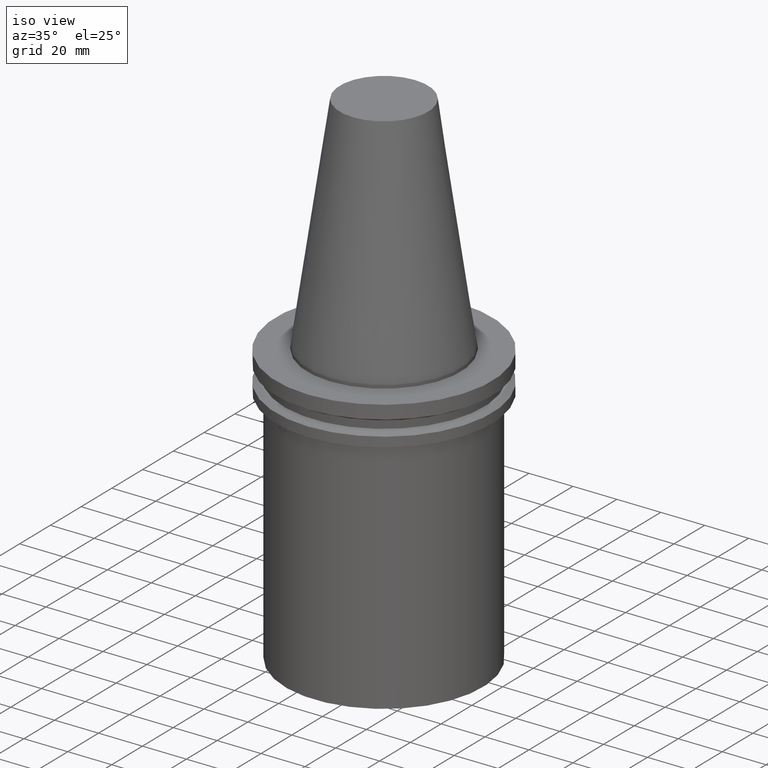
[diagram: clean part render]
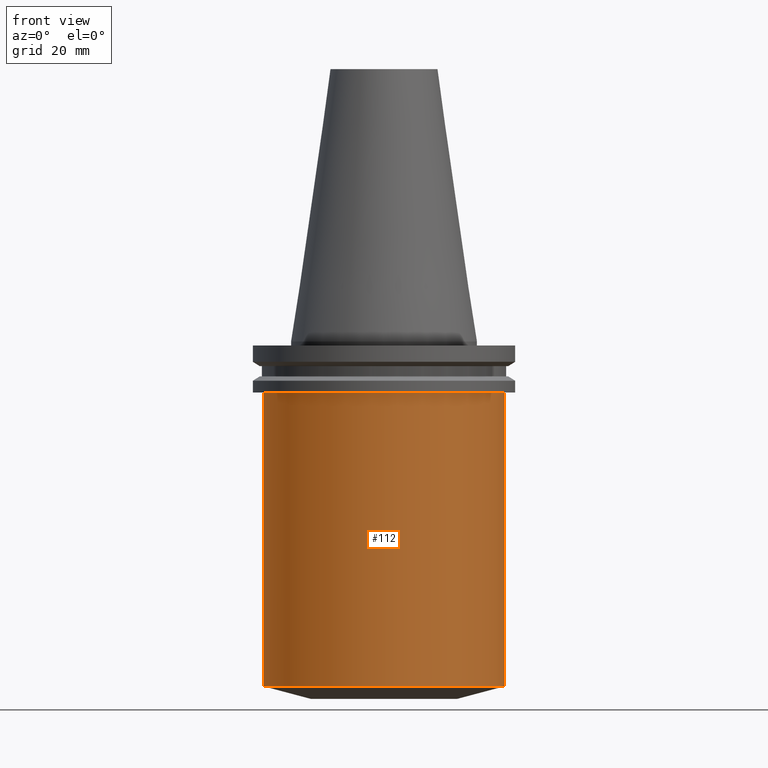
[diagram: tour spotlight — one face highlighted and labeled with its STEP entity id]
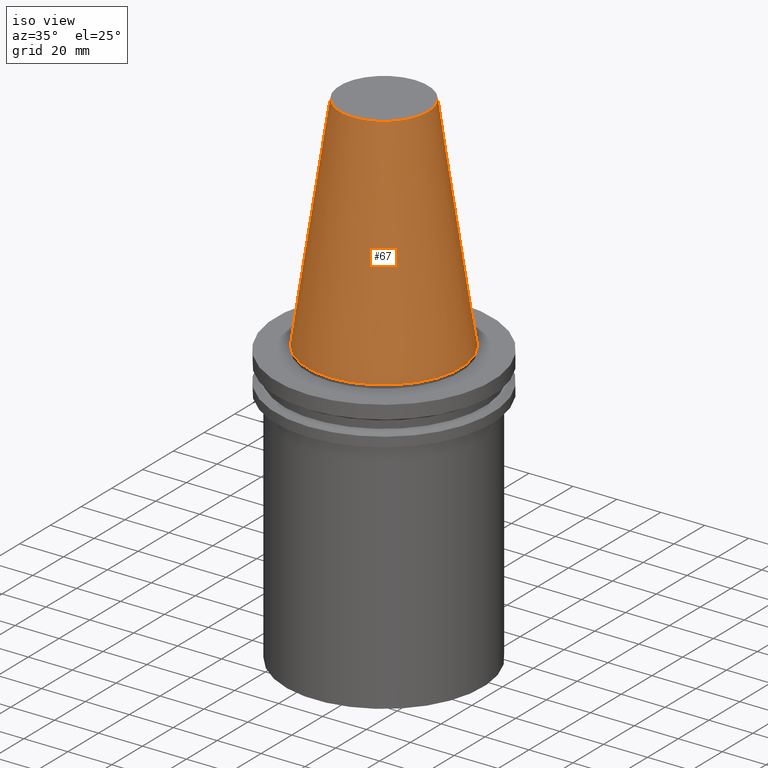
[diagram: tour spotlight — one face highlighted and labeled with its STEP entity id]
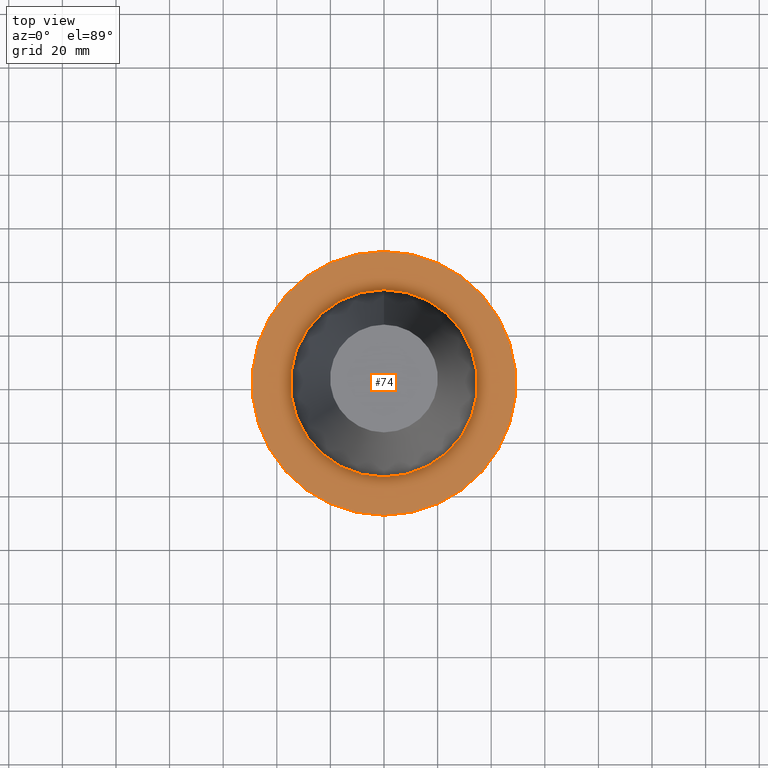
[diagram: tour spotlight — one face highlighted and labeled with its STEP entity id]
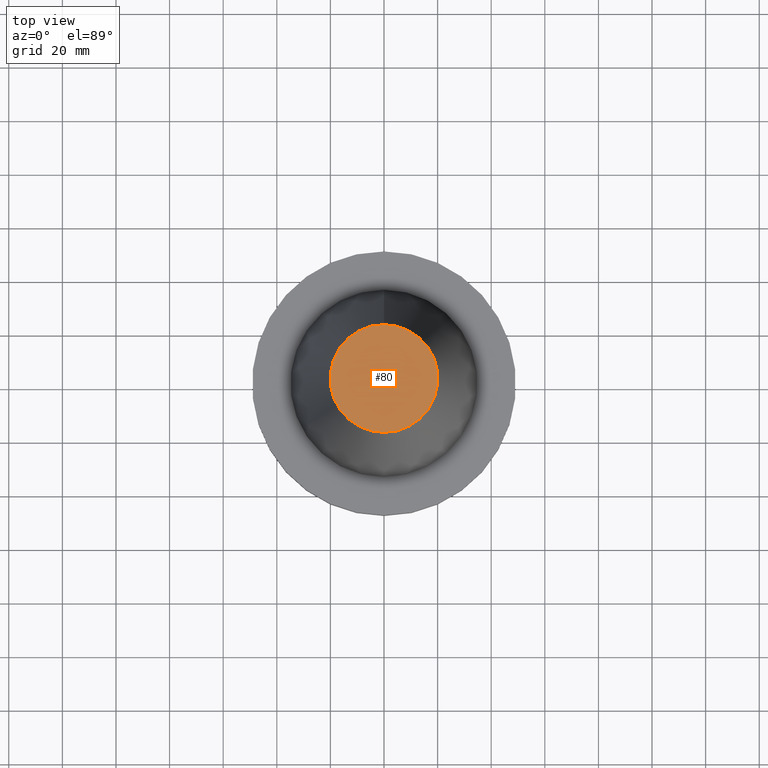
[diagram: tour spotlight — one face highlighted and labeled with its STEP entity id]
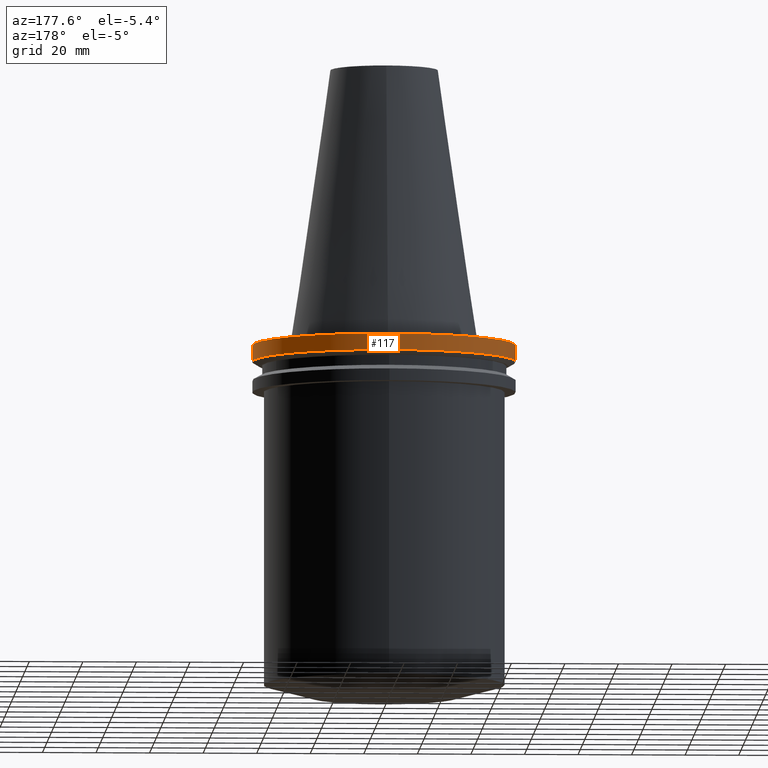
[diagram: tour spotlight — one face highlighted and labeled with its STEP entity id]
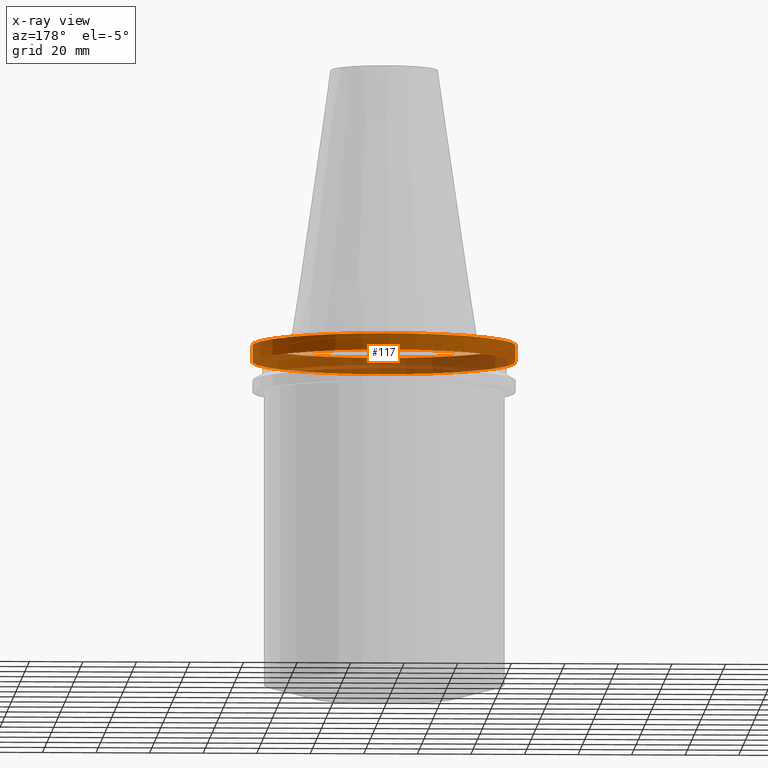
[diagram: x-ray of the same camera — body ghosted, this tour face saturated]
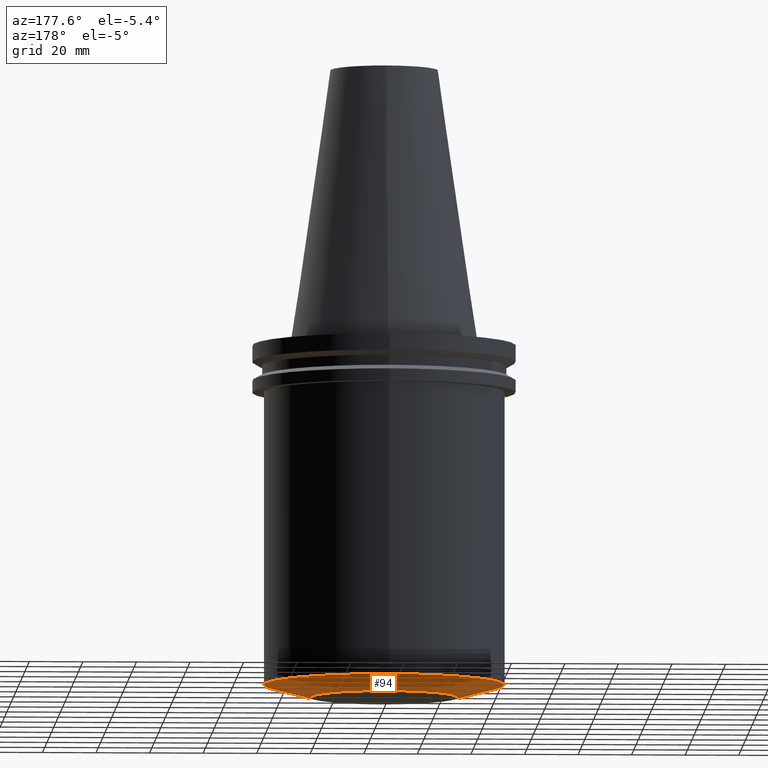
[diagram: tour spotlight — one face highlighted and labeled with its STEP entity id]
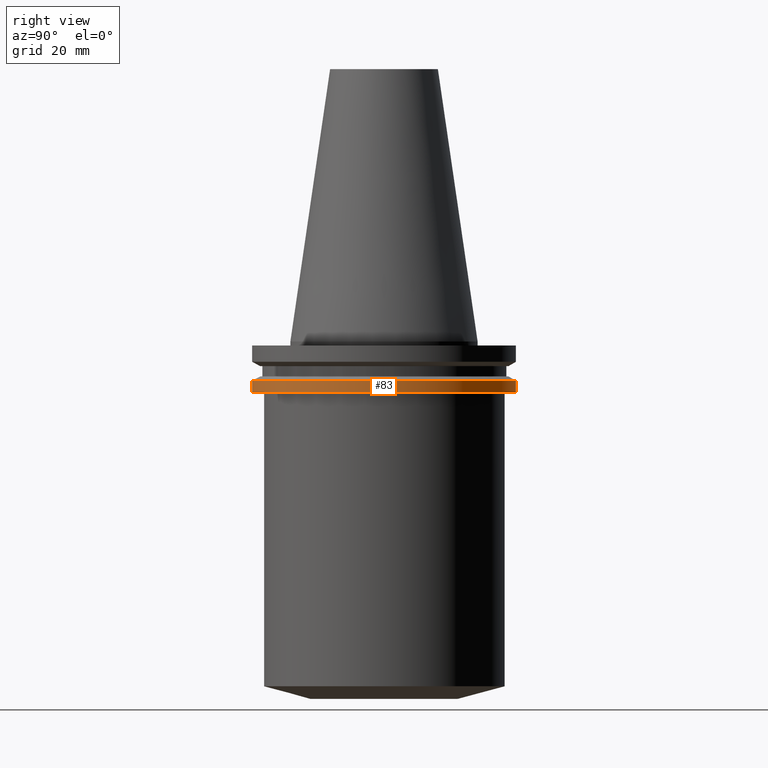
[diagram: tour spotlight — one face highlighted and labeled with its STEP entity id]
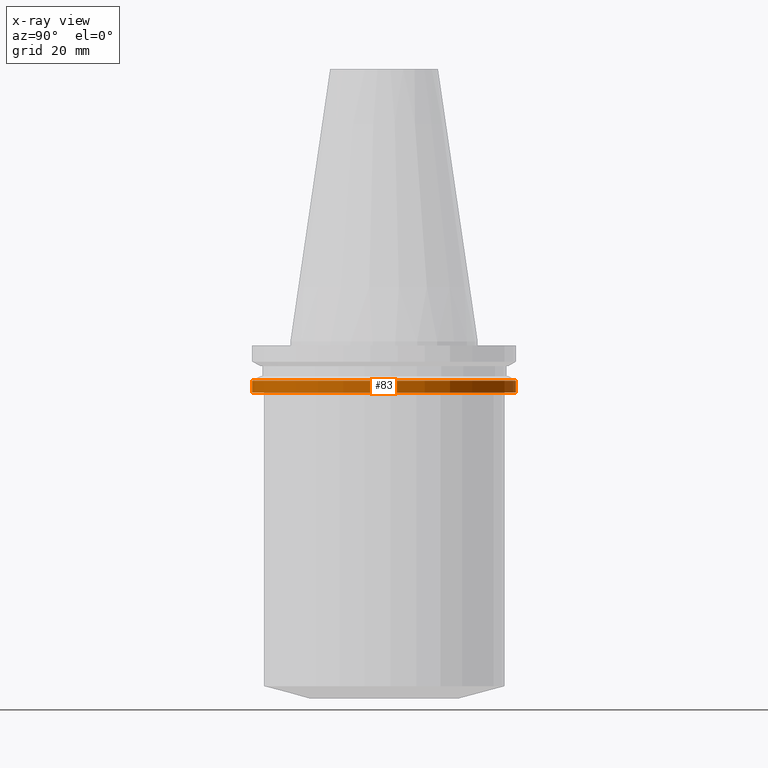
[diagram: x-ray of the same camera — body ghosted, this tour face saturated]
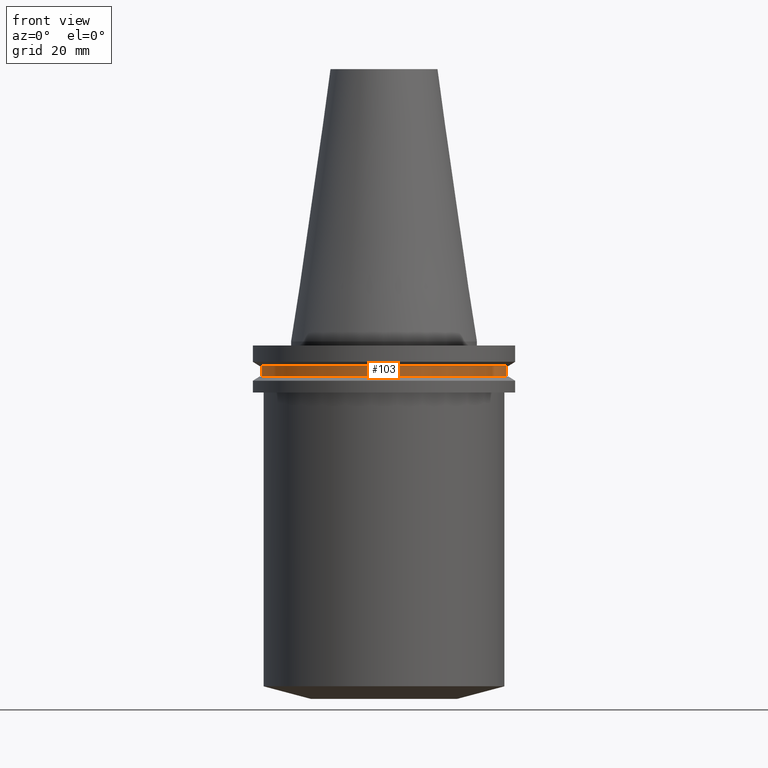
[diagram: tour spotlight — one face highlighted and labeled with its STEP entity id]
A machine part: a face-by-face anatomy tour. The part has 15 B-rep faces; the first image is the clean iso view, then the 8 largest visible faces are spotlighted one at a time (largest first), each with its STEP entity span.

Face 1 — front view, entity #112. In plain terms, the highlighted cylindrical surface (bore or boss wall) has radius 45 mm, axis along (0, 0, -1).
Definition (entity closure, byte-faithful):
#71=EDGE_CURVE('Unnamed[1]',#173,#173,#174,.T.);
#98=EDGE_CURVE('Unnamed[1]',#213,#213,#214,.T.);
#112=ADVANCED_FACE('Unnamed[1]',(#234,#235),#236,.T.);
#173=VERTEX_POINT('',#305);
#174=CIRCLE('',#306,44.9999999999901);
#213=VERTEX_POINT('',#354);
#214=CIRCLE('',#355,44.9999999999985);
#234=FACE_BOUND('',#381,.T.);
#235=FACE_BOUND('',#382,.T.);
#236=CYLINDRICAL_SURFACE('',#383,44.9999999999943);
#305=CARTESIAN_POINT('',(7.87820730257622E-015,44.9999999999901,-128.660889132464));
#306=AXIS2_PLACEMENT_3D('',#447,#448,#449);
#354=CARTESIAN_POINT('',(1.16647607618786E-015,44.9999999999985,-19.05));
#355=AXIS2_PLACEMENT_3D('',#491,#492,#493);
#381=EDGE_LOOP('',(#513));
#382=EDGE_LOOP('',(#514));
#383=AXIS2_PLACEMENT_3D('',#515,#516,#517);
#447=CARTESIAN_POINT('',(7.87820730257622E-015,1.57564146051524E-014,-128.660889132464));
#448=DIRECTION('',(6.12323399573676E-017,1.22464679914735E-016,-1.0));
#449=DIRECTION('',(-1.23259516440783E-032,1.0,1.22464679914735E-016));
#491=CARTESIAN_POINT('',(1.16647607618786E-015,2.33295215237571E-015,-19.05));
#492=DIRECTION('',(6.12323399573677E-017,1.22464679914735E-016,-1.0));
#493=DIRECTION('',(-1.23259516440783E-032,1.0,1.22464679914735E-016));
#513=ORIENTED_EDGE('',*,*,#71,.F.);
#514=ORIENTED_EDGE('',*,*,#98,.T.);
#515=CARTESIAN_POINT('',(4.52234168938204E-015,9.04468337876407E-015,-73.855444566232));
#516=DIRECTION('',(6.12323399573677E-017,1.22464679914735E-016,-1.0));
#517=DIRECTION('',(-1.23259516440783E-032,1.0,1.22464679914735E-016));

Face 2 — iso view, entity #67. In plain terms, the highlighted conical surface has half-angle 8.297 deg.
Definition (entity closure, byte-faithful):
#62=EDGE_CURVE('Unnamed[1]',#159,#159,#160,.T.);
#67=ADVANCED_FACE('Unnamed[1]',(#166,#167),#168,.T.);
#69=EDGE_CURVE('Unnamed[1]',#170,#170,#171,.T.);
#159=VERTEX_POINT('',#287);
#160=CIRCLE('',#288,20.1083333297217);
#166=FACE_BOUND('',#296,.T.);
#167=FACE_BOUND('',#297,.T.);
#168=CONICAL_SURFACE('',#298,27.5166666648609,0.144812498273746);
#170=VERTEX_POINT('',#301);
#171=CIRCLE('',#302,34.925);
#287=CARTESIAN_POINT('',(-6.22120573966855E-015,20.1083333297217,101.6));
#288=AXIS2_PLACEMENT_3D('',#432,#433,#434);
#296=EDGE_LOOP('',(#439));
#297=EDGE_LOOP('',(#440));
#298=AXIS2_PLACEMENT_3D('',#441,#442,#443);
#301=CARTESIAN_POINT('',(-4.30483861169435E-031,34.925,4.27707894602213E-015));
#302=AXIS2_PLACEMENT_3D('',#444,#445,#446);
#432=CARTESIAN_POINT('',(-6.22120573966855E-015,-1.24424114793371E-014,101.6));
#433=DIRECTION('',(6.12323399573676E-017,1.22464679914735E-016,-1.0));
#434=DIRECTION('',(-1.23259516440783E-032,1.0,1.22464679914735E-016));
#439=ORIENTED_EDGE('',*,*,#69,.F.);
#440=ORIENTED_EDGE('',*,*,#62,.T.);
#441=CARTESIAN_POINT('',(-3.11060286983428E-015,-6.22120573966855E-015,50.8));
#442=DIRECTION('',(6.12323399573677E-017,1.22464679914735E-016,-1.0));
#443=DIRECTION('',(-1.23259516440783E-032,1.0,1.22464679914735E-016));
#444=CARTESIAN_POINT('',(0.0,0.0,0.0));
#445=DIRECTION('',(6.12323399573677E-017,1.22464679914735E-016,-1.0));
#446=DIRECTION('',(-1.23259516440783E-032,1.0,1.22464679914735E-016));

Face 3 — top view, entity #74. In plain terms, the highlighted planar face has unit normal (-0, -0, 1).
Definition (entity closure, byte-faithful):
#64=EDGE_CURVE('Unnamed[1]',#162,#162,#163,.T.);
#74=ADVANCED_FACE('Unnamed[1]',(#177,#178),#179,.T.);
#105=EDGE_CURVE('Unnamed[1]',#224,#224,#225,.T.);
#162=VERTEX_POINT('',#291);
#163=CIRCLE('',#292,49.2125);
#177=FACE_OUTER_BOUND('',#310,.T.);
#178=FACE_BOUND('',#311,.T.);
#179=PLANE('',#312);
#224=VERTEX_POINT('',#368);
#225=CIRCLE('',#369,34.925);
#291=CARTESIAN_POINT('',(9.18485099360509E-017,49.2125,-1.49999999999999));
#292=AXIS2_PLACEMENT_3D('',#435,#436,#437);
#310=EDGE_LOOP('',(#451));
#311=EDGE_LOOP('',(#452));
#312=AXIS2_PLACEMENT_3D('',#453,#454,#455);
#368=CARTESIAN_POINT('',(9.18485099360511E-017,34.925,-1.5));
#369=AXIS2_PLACEMENT_3D('',#503,#504,#505);
#435=CARTESIAN_POINT('',(9.18485099360515E-017,1.83697019872103E-016,-1.5));
#436=DIRECTION('',(6.12323399573677E-017,1.22464679914735E-016,-1.0));
#437=DIRECTION('',(-1.23259516440783E-032,1.0,1.22464679914735E-016));
#451=ORIENTED_EDGE('',*,*,#64,.F.);
#452=ORIENTED_EDGE('',*,*,#105,.T.);
#453=CARTESIAN_POINT('',(9.1848509936051E-017,42.06875,-1.49999999999999));
#454=DIRECTION('',(-6.12323399573677E-017,-1.22464679914735E-016,1.0));
#455=DIRECTION('',(1.23259516440783E-032,-1.0,-1.22464679914735E-016));
#503=CARTESIAN_POINT('',(9.18485099360515E-017,1.83697019872103E-016,-1.5));
#504=DIRECTION('',(6.12323399573677E-017,1.22464679914735E-016,-1.0));
#505=DIRECTION('',(-1.23259516440783E-032,1.0,1.22464679914735E-016));

Face 4 — top view, entity #80. In plain terms, the highlighted planar face has unit normal (-0, -0, 1).
Definition (entity closure, byte-faithful):
#62=EDGE_CURVE('Unnamed[1]',#159,#159,#160,.T.);
#80=ADVANCED_FACE('Unnamed[1]',(#185),#186,.T.);
#159=VERTEX_POINT('',#287);
#160=CIRCLE('',#288,20.1083333297217);
#185=FACE_OUTER_BOUND('',#319,.T.);
#186=PLANE('',#320);
#287=CARTESIAN_POINT('',(-6.22120573966855E-015,20.1083333297217,101.6));
#288=AXIS2_PLACEMENT_3D('',#432,#433,#434);
#319=EDGE_LOOP('',(#458));
#320=AXIS2_PLACEMENT_3D('',#459,#460,#461);
#432=CARTESIAN_POINT('',(-6.22120573966855E-015,-1.24424114793371E-014,101.6));
#433=DIRECTION('',(6.12323399573676E-017,1.22464679914735E-016,-1.0));
#434=DIRECTION('',(-1.23259516440783E-032,1.0,1.22464679914735E-016));
#458=ORIENTED_EDGE('',*,*,#62,.F.);
#459=CARTESIAN_POINT('',(-6.22120573966855E-015,10.0541666648608,101.6));
#460=DIRECTION('',(-6.12323399573677E-017,-1.22464679914735E-016,1.0));
#461=DIRECTION('',(1.23259516440783E-032,-1.0,-1.22464679914735E-016));

Face 5 — auxiliary view, entity #117. An x-ray twin of the same camera follows (body ghosted, this face saturated) — the face is partly hidden behind the body. In plain terms, the highlighted cylindrical surface (bore or boss wall) has radius 49.2125 mm, axis along (0, 0, -1).
Definition (entity closure, byte-faithful):
#64=EDGE_CURVE('Unnamed[1]',#162,#162,#163,.T.);
#114=EDGE_CURVE('Unnamed[1]',#238,#238,#239,.T.);
#117=ADVANCED_FACE('Unnamed[1]',(#242,#243),#244,.T.);
#162=VERTEX_POINT('',#291);
#163=CIRCLE('',#292,49.2125);
#238=VERTEX_POINT('',#386);
#239=CIRCLE('',#387,49.2125);
#242=FACE_BOUND('',#391,.T.);
#243=FACE_BOUND('',#392,.T.);
#244=CYLINDRICAL_SURFACE('',#393,49.2125);
#291=CARTESIAN_POINT('',(9.18485099360509E-017,49.2125,-1.49999999999999));
#292=AXIS2_PLACEMENT_3D('',#435,#436,#437);
#386=CARTESIAN_POINT('',(4.64988177918915E-016,49.2125,-7.59383323));
#387=AXIS2_PLACEMENT_3D('',#518,#519,#520);
#391=EDGE_LOOP('',(#522));
#392=EDGE_LOOP('',(#523));
#393=AXIS2_PLACEMENT_3D('',#524,#525,#526);
#435=CARTESIAN_POINT('',(9.18485099360515E-017,1.83697019872103E-016,-1.5));
#436=DIRECTION('',(6.12323399573677E-017,1.22464679914735E-016,-1.0));
#437=DIRECTION('',(-1.23259516440783E-032,1.0,1.22464679914735E-016));
#518=CARTESIAN_POINT('',(4.64988177918915E-016,9.29976355837831E-016,-7.59383323));
#519=DIRECTION('',(6.12323399573677E-017,1.22464679914735E-016,-1.0));
#520=DIRECTION('',(-1.23259516440783E-032,1.0,1.22464679914735E-016));
#522=ORIENTED_EDGE('',*,*,#114,.F.);
#523=ORIENTED_EDGE('',*,*,#64,.T.);
#524=CARTESIAN_POINT('',(2.78418343927483E-016,5.56836687854965E-016,-4.54691661499999));
#525=DIRECTION('',(6.12323399573677E-017,1.22464679914735E-016,-1.0));
#526=DIRECTION('',(-1.23259516440783E-032,1.0,1.22464679914735E-016));

Face 6 — auxiliary view, entity #94. In plain terms, the highlighted conical surface has half-angle 75 deg.
Definition (entity closure, byte-faithful):
#71=EDGE_CURVE('Unnamed[1]',#173,#173,#174,.T.);
#94=ADVANCED_FACE('Unnamed[1]',(#206,#207),#208,.T.);
#100=EDGE_CURVE('Unnamed[1]',#216,#216,#217,.T.);
#173=VERTEX_POINT('',#305);
#174=CIRCLE('',#306,44.9999999999901);
#206=FACE_BOUND('',#345,.T.);
#207=FACE_BOUND('',#346,.T.);
#208=CONICAL_SURFACE('',#347,36.2500000000041,1.30899693899581);
#216=VERTEX_POINT('',#358);
#217=CIRCLE('',#359,27.500000000018);
#305=CARTESIAN_POINT('',(7.87820730257622E-015,44.9999999999901,-128.660889132464));
#306=AXIS2_PLACEMENT_3D('',#447,#448,#449);
#345=EDGE_LOOP('',(#483));
#346=EDGE_LOOP('',(#484));
#347=AXIS2_PLACEMENT_3D('',#485,#486,#487);
#358=CARTESIAN_POINT('',(8.16533253331496E-015,27.500000000018,-133.35));
#359=AXIS2_PLACEMENT_3D('',#494,#495,#496);
#447=CARTESIAN_POINT('',(7.87820730257622E-015,1.57564146051524E-014,-128.660889132464));
#448=DIRECTION('',(6.12323399573676E-017,1.22464679914735E-016,-1.0));
#449=DIRECTION('',(-1.23259516440783E-032,1.0,1.22464679914735E-016));
#483=ORIENTED_EDGE('',*,*,#100,.F.);
#484=ORIENTED_EDGE('',*,*,#71,.T.);
#485=CARTESIAN_POINT('',(8.02176991794559E-015,1.60435398358912E-014,-131.005444566232));
#486=DIRECTION('',(-6.12323399573677E-017,-1.22464679914735E-016,1.0));
#487=DIRECTION('',(-1.23259516440783E-032,1.0,1.22464679914735E-016));
#494=CARTESIAN_POINT('',(8.16533253331496E-015,1.63306650666299E-014,-133.35));
#495=DIRECTION('',(6.12323399573677E-017,1.22464679914735E-016,-1.0));
#496=DIRECTION('',(-1.23259516440783E-032,1.0,1.22464679914735E-016));

Face 7 — right view, entity #83. An x-ray twin of the same camera follows (body ghosted, this face saturated) — the face is partly hidden behind the body. In plain terms, the highlighted cylindrical surface (bore or boss wall) has radius 49.2125 mm, axis along (0, 0, -1).
Definition (entity closure, byte-faithful):
#83=ADVANCED_FACE('Unnamed[1]',(#189,#190),#191,.T.);
#96=EDGE_CURVE('Unnamed[1]',#210,#210,#211,.T.);
#109=EDGE_CURVE('Unnamed[1]',#230,#230,#231,.T.);
#189=FACE_BOUND('',#324,.T.);
#190=FACE_BOUND('',#325,.T.);
#191=CYLINDRICAL_SURFACE('',#326,49.2125);
#210=VERTEX_POINT('',#350);
#211=CIRCLE('',#351,49.2125);
#230=VERTEX_POINT('',#376);
#231=CIRCLE('',#377,49.2125);
#324=EDGE_LOOP('',(#463));
#325=EDGE_LOOP('',(#464));
#326=AXIS2_PLACEMENT_3D('',#465,#466,#467);
#350=CARTESIAN_POINT('',(8.96819062732941E-016,49.2125,-14.64616677));
#351=AXIS2_PLACEMENT_3D('',#488,#489,#490);
#376=CARTESIAN_POINT('',(1.16647607618785E-015,49.2125,-19.05));
#377=AXIS2_PLACEMENT_3D('',#509,#510,#511);
#463=ORIENTED_EDGE('',*,*,#109,.F.);
#464=ORIENTED_EDGE('',*,*,#96,.T.);
#465=CARTESIAN_POINT('',(1.0316475694604E-015,2.0632951389208E-015,-16.848083385));
#466=DIRECTION('',(6.12323399573677E-017,1.22464679914735E-016,-1.0));
#467=DIRECTION('',(-1.23259516440783E-032,1.0,1.22464679914735E-016));
#488=CARTESIAN_POINT('',(8.96819062732942E-016,1.79363812546588E-015,-14.64616677));
#489=DIRECTION('',(6.12323399573677E-017,1.22464679914735E-016,-1.0));
#490=DIRECTION('',(-1.23259516440783E-032,1.0,1.22464679914735E-016));
#509=CARTESIAN_POINT('',(1.16647607618785E-015,2.33295215237571E-015,-19.05));
#510=DIRECTION('',(6.12323399573677E-017,1.22464679914735E-016,-1.0));
#511=DIRECTION('',(-1.23259516440783E-032,1.0,1.22464679914735E-016));

Face 8 — front view, entity #103. In plain terms, the highlighted cylindrical surface (bore or boss wall) has radius 45.645 mm, axis along (0, 0, -1).
Definition (entity closure, byte-faithful):
#60=EDGE_CURVE('Unnamed[1]',#156,#156,#157,.T.);
#103=ADVANCED_FACE('Unnamed[1]',(#220,#221),#222,.T.);
#122=EDGE_CURVE('Unnamed[1]',#251,#251,#252,.T.);
#156=VERTEX_POINT('',#283);
#157=CIRCLE('',#284,45.645);
#220=FACE_BOUND('',#363,.T.);
#221=FACE_BOUND('',#364,.T.);
#222=CYLINDRICAL_SURFACE('',#365,45.645);
#251=VERTEX_POINT('',#402);
#252=CIRCLE('',#403,45.645);
#283=CARTESIAN_POINT('',(5.63337527607782E-016,45.645,-9.2));
#284=AXIS2_PLACEMENT_3D('',#429,#430,#431);
#363=EDGE_LOOP('',(#498));
#364=EDGE_LOOP('',(#499));
#365=AXIS2_PLACEMENT_3D('',#500,#501,#502);
#402=CARTESIAN_POINT('',(7.98469713044073E-016,45.645,-13.04));
#403=AXIS2_PLACEMENT_3D('',#533,#534,#535);
#429=CARTESIAN_POINT('',(5.63337527607783E-016,1.12667505521557E-015,-9.2));
#430=DIRECTION('',(6.12323399573677E-017,1.22464679914735E-016,-1.0));
#431=DIRECTION('',(-1.23259516440783E-032,1.0,1.22464679914735E-016));
#498=ORIENTED_EDGE('',*,*,#122,.F.);
#499=ORIENTED_EDGE('',*,*,#60,.T.);
#500=CARTESIAN_POINT('',(6.80903620325929E-016,1.36180724065186E-015,-11.12));
#501=DIRECTION('',(6.12323399573677E-017,1.22464679914735E-016,-1.0));
#502=DIRECTION('',(-1.23259516440783E-032,1.0,1.22464679914735E-016));
#533=CARTESIAN_POINT('',(7.98469713044074E-016,1.59693942608815E-015,-13.04));
#534=DIRECTION('',(6.12323399573677E-017,1.22464679914735E-016,-1.0));
#535=DIRECTION('',(-1.23259516440783E-032,1.0,1.22464679914735E-016));